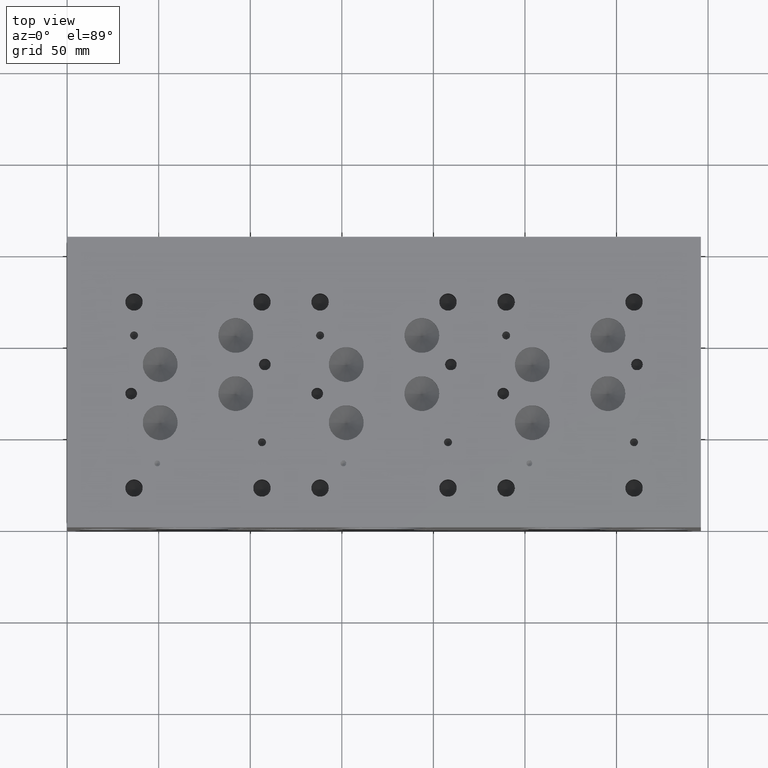
[diagram: clean part render]
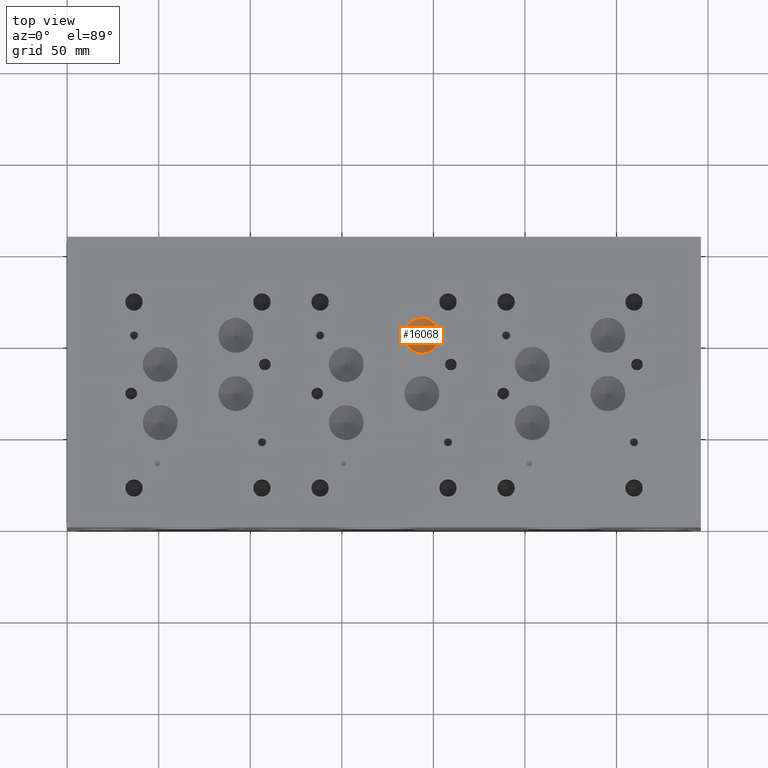
[diagram: same view with one face highlighted and labeled with its STEP entity id]
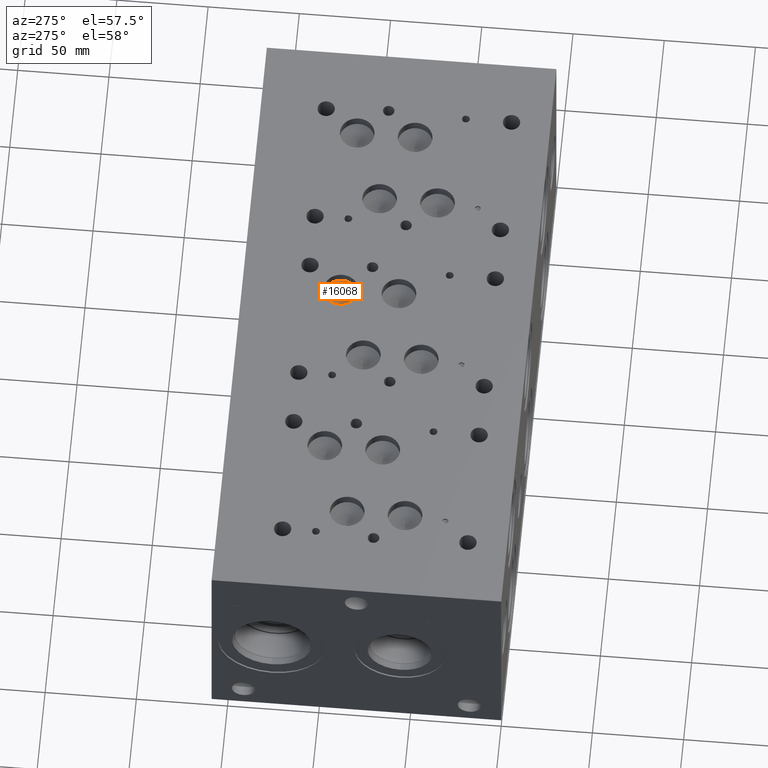
[diagram: same view with one face highlighted and labeled with its STEP entity id]
A machine part, top view. The second image highlights one B-rep face of the part: STEP entity #16068.
A second angle (auxiliary view) of the same face is appended — the face is thin or edge-on in the first view.
In plain terms, the highlighted conical surface has half-angle 60 deg.
Its self-contained STEP definition (entity closure, byte-faithful):
#251=CONICAL_SURFACE('',#17216,4.7625,1.0471975511966);
#708=CIRCLE('',#17217,9.525);
#709=CIRCLE('',#17218,9.525);
#2202=FACE_OUTER_BOUND('',#3162,.T.);
#3162=EDGE_LOOP('',(#14031,#14032,#14033,#14034));
#4626=LINE('',#27561,#6035);
#6035=VECTOR('',#20891,4.7625);
#7538=VERTEX_POINT('',#27557);
#7539=VERTEX_POINT('',#27558);
#7540=VERTEX_POINT('',#27560);
#9748=EDGE_CURVE('',#7538,#7539,#708,.T.);
#9749=EDGE_CURVE('',#7539,#7540,#4626,.T.);
#9750=EDGE_CURVE('',#7539,#7538,#709,.T.);
#14031=ORIENTED_EDGE('',*,*,#9748,.T.);
#14032=ORIENTED_EDGE('',*,*,#9749,.T.);
#14033=ORIENTED_EDGE('',*,*,#9749,.F.);
#14034=ORIENTED_EDGE('',*,*,#9750,.T.);
#16068=ADVANCED_FACE('',(#2202),#251,.F.);
#17216=AXIS2_PLACEMENT_3D('',#27556,#20887,#20888);
#17217=AXIS2_PLACEMENT_3D('',#27559,#20889,#20890);
#17218=AXIS2_PLACEMENT_3D('',#27562,#20892,#20893);
#20887=DIRECTION('center_axis',(0.,0.,1.));
#20888=DIRECTION('ref_axis',(1.,0.,0.));
#20889=DIRECTION('center_axis',(0.,0.,1.));
#20890=DIRECTION('ref_axis',(1.,0.,0.));
#20891=DIRECTION('',(0.866025403784439,1.06057523872491E-16,-0.5));
#20892=DIRECTION('center_axis',(0.,0.,1.));
#20893=DIRECTION('ref_axis',(1.,0.,0.));
#27556=CARTESIAN_POINT('Origin',(193.675,104.775,112.401109342984));
#27557=CARTESIAN_POINT('',(203.2,104.775,115.15074));
#27558=CARTESIAN_POINT('',(184.15,104.775,115.15074));
#27559=CARTESIAN_POINT('Origin',(193.675,104.775,115.15074));
#27560=CARTESIAN_POINT('',(193.675,104.775,109.651478685969));
#27561=CARTESIAN_POINT('',(188.9125,104.775,112.401109342984));
#27562=CARTESIAN_POINT('Origin',(193.675,104.775,115.15074));